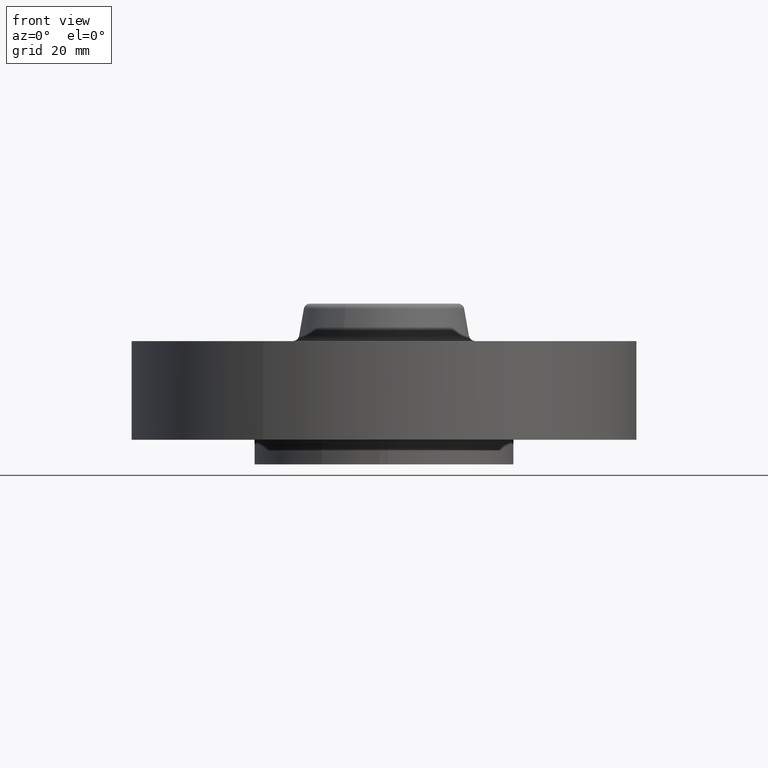
[diagram: clean part render]
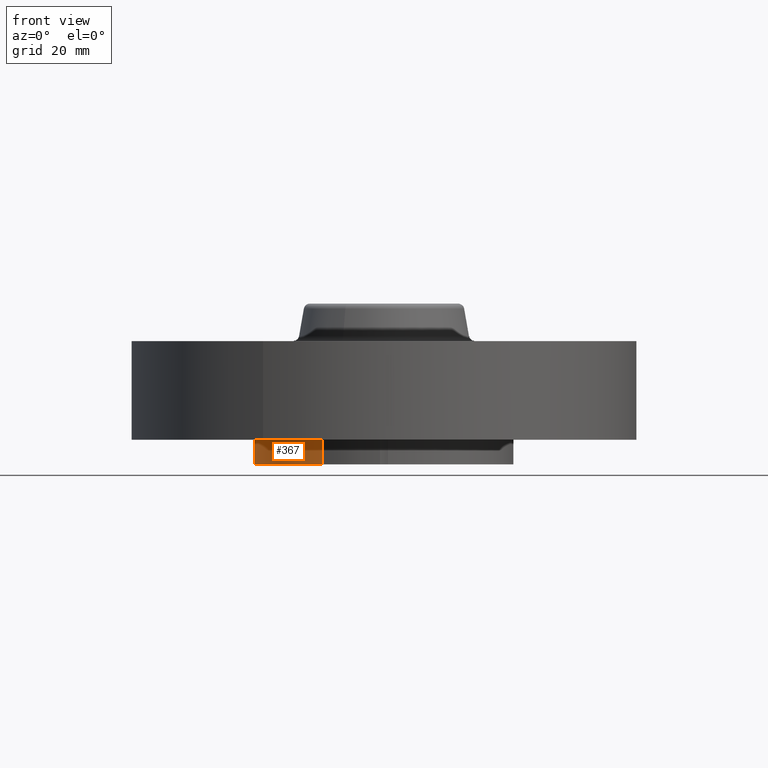
[diagram: same view with one face highlighted and labeled with its STEP entity id]
A machine part, front view. The second image highlights one B-rep face of the part: STEP entity #367.
In plain terms, the highlighted cylindrical surface (partial cylindrical patch) has radius 33.3375 mm, axis along (0, 0, -1).
Its self-contained STEP definition (entity closure, byte-faithful):
#216=AXIS2_PLACEMENT_3D('Circle Axis2P3D',#214,#215,$) ;
#295=AXIS2_PLACEMENT_3D('Cylinder Axis2P3D',#292,#293,#294) ;
#351=AXIS2_PLACEMENT_3D('Circle Axis2P3D',#349,#350,$) ;
#211=CARTESIAN_POINT('Vertex',(-0.629246019421,-1.15182711249,-0.250000000001)) ;
#214=CARTESIAN_POINT('Axis2P3D Location',(0.,0.,-0.250000000001)) ;
#218=CARTESIAN_POINT('Vertex',(-1.31187321429,-0.0405576089,-0.250000000001)) ;
#292=CARTESIAN_POINT('Axis2P3D Location',(0.,0.,0.565000000002)) ;
#329=CARTESIAN_POINT('Vertex',(-0.629246019421,-1.15182711249,6.99353086378E-017)) ;
#332=CARTESIAN_POINT('Line Origine',(-0.629246019421,-1.15182711249,-0.125)) ;
#349=CARTESIAN_POINT('Axis2P3D Location',(0.,0.,1.39870617276E-016)) ;
#353=CARTESIAN_POINT('Vertex',(-1.31187321429,-0.0405576089,1.39870617276E-016)) ;
#356=CARTESIAN_POINT('Line Origine',(-1.31187321429,-0.0405576089,-0.125)) ;
#215=DIRECTION('Axis2P3D Direction',(0.,0.,-0.0393700787402)) ;
#293=DIRECTION('Axis2P3D Direction',(0.,0.,-0.0393700787402)) ;
#294=DIRECTION('Axis2P3D XDirection',(0.0188750212049,0.0345504945626,0.)) ;
#333=DIRECTION('Vector Direction',(0.,0.,-0.0393700787402)) ;
#350=DIRECTION('Axis2P3D Direction',(0.,0.,-0.0393700787402)) ;
#357=DIRECTION('Vector Direction',(0.,0.,-0.0393700787402)) ;
#334=VECTOR('Line Direction',#333,0.0393700787402) ;
#358=VECTOR('Line Direction',#357,0.0393700787402) ;
#362=ORIENTED_EDGE('',*,*,#220,.F.) ;
#363=ORIENTED_EDGE('',*,*,#336,.T.) ;
#364=ORIENTED_EDGE('',*,*,#355,.T.) ;
#365=ORIENTED_EDGE('',*,*,#360,.T.) ;
#367=ADVANCED_FACE('PartBody',(#366),#296,.T.) ;
#217=CIRCLE('generated circle',#216,1.31250000001) ;
#352=CIRCLE('generated circle',#351,1.31250000001) ;
#296=CYLINDRICAL_SURFACE('generated cylinder',#295,1.31250000001) ;
#220=EDGE_CURVE('',#212,#219,#217,.T.) ;
#336=EDGE_CURVE('',#212,#330,#335,.F.) ;
#355=EDGE_CURVE('',#330,#354,#352,.T.) ;
#360=EDGE_CURVE('',#354,#219,#359,.T.) ;
#361=EDGE_LOOP('',(#362,#363,#364,#365)) ;
#366=FACE_OUTER_BOUND('',#361,.T.) ;
#335=LINE('Line',#332,#334) ;
#359=LINE('Line',#356,#358) ;
#212=VERTEX_POINT('',#211) ;
#219=VERTEX_POINT('',#218) ;
#330=VERTEX_POINT('',#329) ;
#354=VERTEX_POINT('',#353) ;